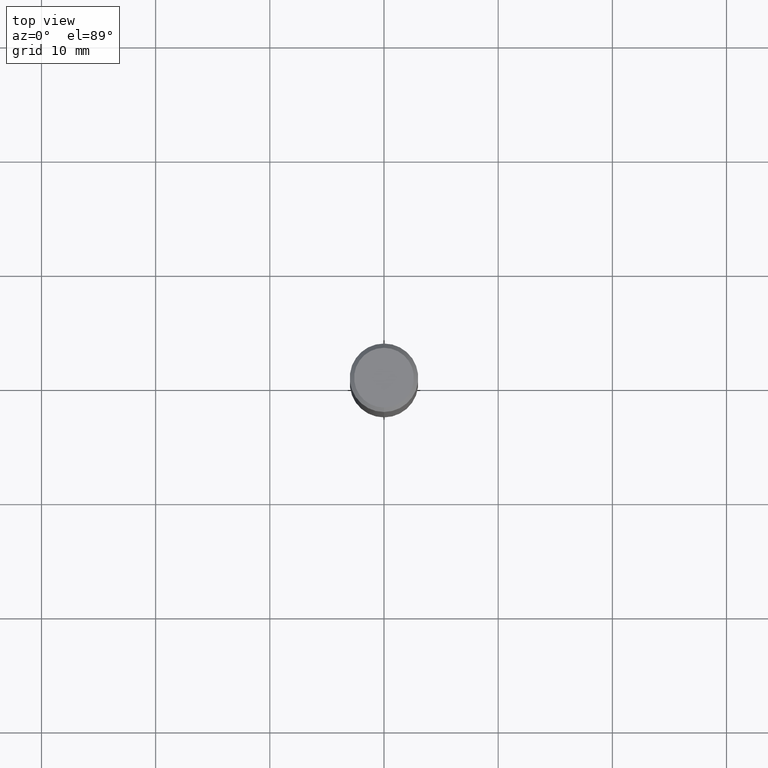
[diagram: clean part render]
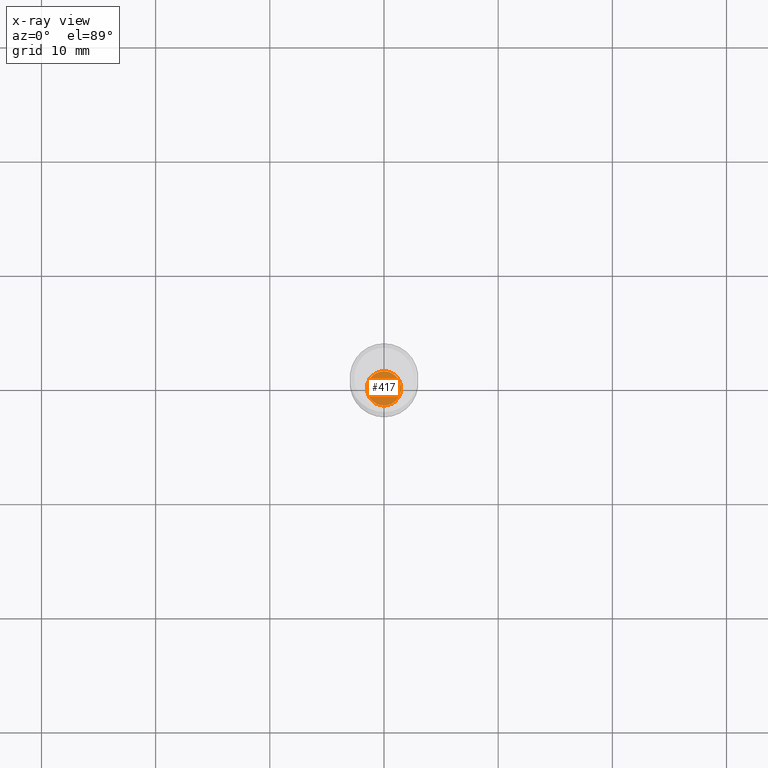
[diagram: x-ray — body ghosted, one internal face saturated and labeled with its STEP entity id]
A machine part, top view, then the same camera in x-ray: the body is ghosted and one INTERNAL B-rep face — a face not visible from any outside direction — is saturated and labeled: STEP entity #417.
In plain terms, the highlighted planar face has unit normal (-0, 0, 1).
Its self-contained STEP definition (entity closure, byte-faithful):
#19 = ORIENTED_EDGE ( 'NONE', *, *, #124, .F. ) ;
#78 = CARTESIAN_POINT ( 'NONE',  ( 4.123439461174264426E-16, 0.05904999999999250432, -2.145700000000000163 ) ) ;
#79 = FACE_OUTER_BOUND ( 'NONE', #245, .T. ) ;
#122 = ORIENTED_EDGE ( 'NONE', *, *, #156, .F. ) ;
#124 = EDGE_CURVE ( 'NONE', #170, #377, #227, .T. ) ;
#127 = DIRECTION ( 'NONE',  ( -2.445314574720221172E-29, 3.491702207079214016E-15, 1.000000000000000000 ) ) ;
#133 = CARTESIAN_POINT ( 'NONE',  ( 5.246911482977179404E-29, -7.492145425729869203E-15, -2.145700000000000163 ) ) ;
#137 = CARTESIAN_POINT ( 'NONE',  ( 5.246911482977179404E-29, -7.492145425729869203E-15, -2.145700000000000163 ) ) ;
#150 = AXIS2_PLACEMENT_3D ( 'NONE', #78, #127, #305 ) ;
#156 = EDGE_CURVE ( 'NONE', #377, #170, #433, .T. ) ;
#170 = VERTEX_POINT ( 'NONE', #290 ) ;
#171 = CARTESIAN_POINT ( 'NONE',  ( -4.123439461173217214E-16, -0.05905000000000752008, -2.145699999999999719 ) ) ;
#185 = DIRECTION ( 'NONE',  ( -6.982962677686265922E-15, -1.000000000000000000, 4.626330217890369336E-15 ) ) ;
#186 = AXIS2_PLACEMENT_3D ( 'NONE', #133, #444, #185 ) ;
#209 = PLANE ( 'NONE',  #150 ) ;
#227 = CIRCLE ( 'NONE', #552, 0.05904999999999999832 ) ;
#245 = EDGE_LOOP ( 'NONE', ( #122, #19 ) ) ;
#290 = CARTESIAN_POINT ( 'NONE',  ( 4.195754854663917550E-16, 0.05904999999999253207, -2.145700000000000163 ) ) ;
#305 = DIRECTION ( 'NONE',  ( -6.982962677686265922E-15, -1.000000000000000000, 3.491702207079214016E-15 ) ) ;
#312 = DIRECTION ( 'NONE',  ( -2.445314574720221452E-29, 3.491702207079214016E-15, 1.000000000000000000 ) ) ;
#377 = VERTEX_POINT ( 'NONE', #171 ) ;
#417 = ADVANCED_FACE ( 'NONE', ( #79 ), #209, .F. ) ;
#433 = CIRCLE ( 'NONE', #186, 0.05904999999999999832 ) ;
#444 = DIRECTION ( 'NONE',  ( -2.445314574720221452E-29, 3.491702207079214016E-15, 1.000000000000000000 ) ) ;
#525 = DIRECTION ( 'NONE',  ( -6.982962677686265922E-15, -1.000000000000000000, 4.626330217890369336E-15 ) ) ;
#552 = AXIS2_PLACEMENT_3D ( 'NONE', #137, #312, #525 ) ;